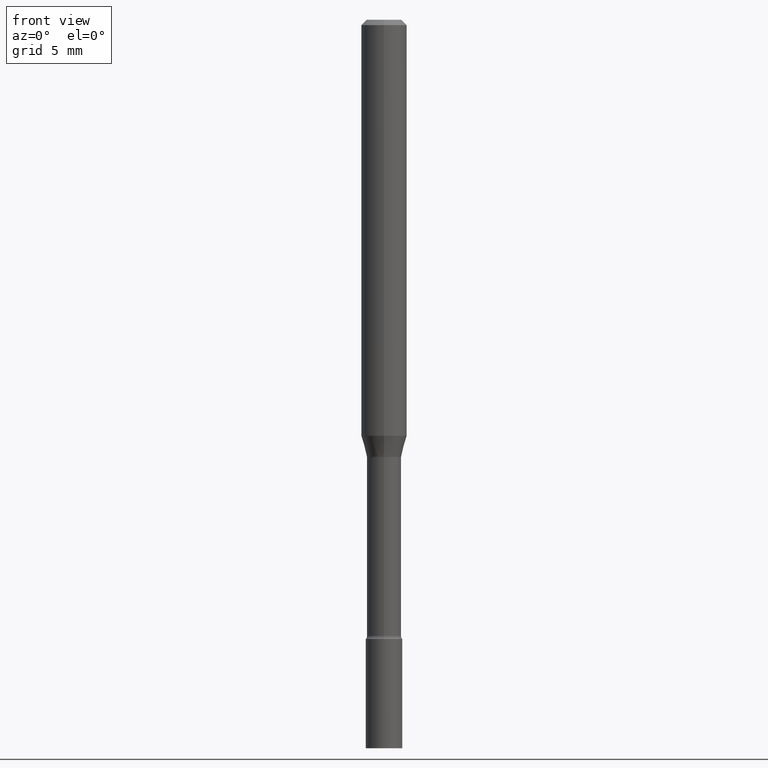
[diagram: clean part render]
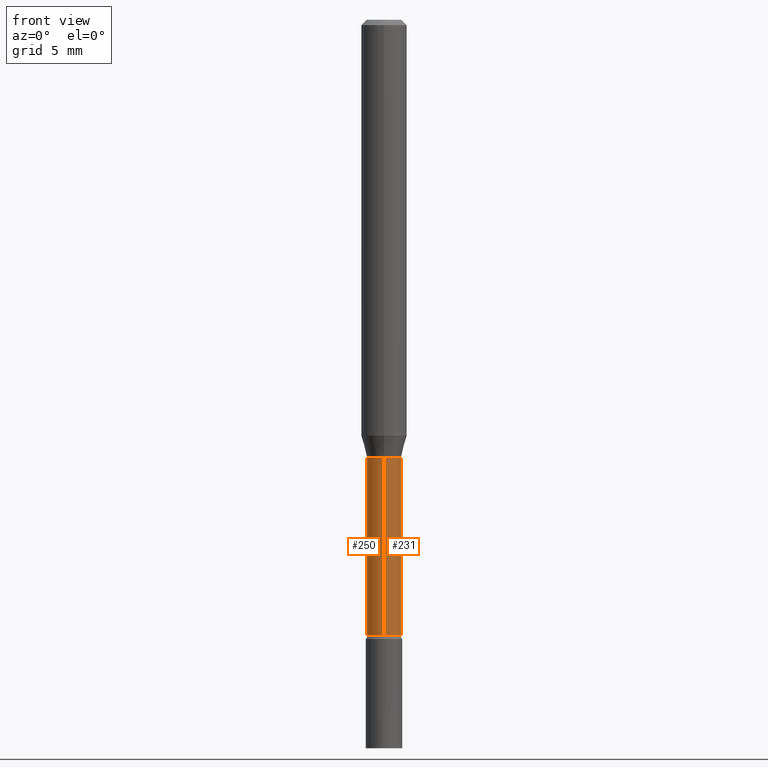
[diagram: same view with one multi-face feature highlighted, each face labeled with its STEP entity id]
A machine part, front view. The highlighted faces form ONE feature: a constant-radius fillet chain: 2 tangent blend faces with common blend radius 1.1938 mm. The faces share edges in the B-rep.
Their STEP definitions:
[1] entity #231 (Cylinder):
#10 = ORIENTED_EDGE ( 'NONE', *, *, #437, .T. ) ;
#63 = LINE ( 'NONE', #397, #97 ) ;
#75 = LINE ( 'NONE', #374, #379 ) ;
#87 = VERTEX_POINT ( 'NONE', #386 ) ;
#93 = CARTESIAN_POINT ( 'NONE',  ( 3.339550858072885526E-16, 0.04699999999999578820, -1.201974787463810923 ) ) ;
#97 = VECTOR ( 'NONE', #475, 39.37007874015748143 ) ;
#125 = VERTEX_POINT ( 'NONE', #309 ) ;
#128 = AXIS2_PLACEMENT_3D ( 'NONE', #373, #480, #484 ) ;
#159 = DIRECTION ( 'NONE',  ( -2.445393163361418932E-29, 3.491589663672031616E-15, 1.000000000000000000 ) ) ;
#190 = DIRECTION ( 'NONE',  ( -2.445393163361418932E-29, 3.491589663672031221E-15, 1.000000000000000000 ) ) ;
#203 = VERTEX_POINT ( 'NONE', #434 ) ;
#230 = ORIENTED_EDGE ( 'NONE', *, *, #505, .F. ) ;
#231 = ADVANCED_FACE ( 'NONE', ( #282 ), #325, .T. ) ;
#239 = CIRCLE ( 'NONE', #388, 0.04699999999999998623 ) ;
#274 = ORIENTED_EDGE ( 'NONE', *, *, #473, .F. ) ;
#282 = FACE_OUTER_BOUND ( 'NONE', #350, .T. ) ;
#290 = DIRECTION ( 'NONE',  ( -6.982962677686265922E-15, -1.000000000000000000, 2.906221269855600083E-15 ) ) ;
#309 = CARTESIAN_POINT ( 'NONE',  ( -3.281992458512250202E-16, -0.04700000000000418426, -1.201974787463810701 ) ) ;
#325 = CYLINDRICAL_SURFACE ( 'NONE', #128, 0.04700000000000003481 ) ;
#326 = CARTESIAN_POINT ( 'NONE',  ( 2.939300927796797493E-29, -4.196802743903029132E-15, -1.201974787463810701 ) ) ;
#346 = VERTEX_POINT ( 'NONE', #93 ) ;
#350 = EDGE_LOOP ( 'NONE', ( #486, #10, #274, #230 ) ) ;
#373 = CARTESIAN_POINT ( 'NONE',  ( 0.000000000000000000, 0.000000000000000000, 0.000000000000000000 ) ) ;
#374 = CARTESIAN_POINT ( 'NONE',  ( -3.281992458512547997E-16, -0.04700000000000003481, 1.641047141925856122E-16 ) ) ;
#378 = AXIS2_PLACEMENT_3D ( 'NONE', #406, #190, #447 ) ;
#379 = VECTOR ( 'NONE', #159, 39.37007874015748143 ) ;
#386 = CARTESIAN_POINT ( 'NONE',  ( -3.281992458512137296E-16, -0.04700000000000599532, -1.690999999999999837 ) ) ;
#388 = AXIS2_PLACEMENT_3D ( 'NONE', #326, #403, #290 ) ;
#397 = CARTESIAN_POINT ( 'NONE',  ( 3.339550858072472854E-16, 0.04700000000000003481, -1.641047141925856122E-16 ) ) ;
#402 = EDGE_CURVE ( 'NONE', #87, #203, #501, .T. ) ;
#403 = DIRECTION ( 'NONE',  ( -2.445393163361418932E-29, 3.491589663672031221E-15, 1.000000000000000000 ) ) ;
#406 = CARTESIAN_POINT ( 'NONE',  ( 4.135159839244159907E-29, -5.904278121269405101E-15, -1.691000000000000059 ) ) ;
#434 = CARTESIAN_POINT ( 'NONE',  ( 3.446132268436902621E-16, 0.04699999999999417838, -1.691000000000000281 ) ) ;
#437 = EDGE_CURVE ( 'NONE', #203, #346, #63, .T. ) ;
#447 = DIRECTION ( 'NONE',  ( -6.982962677686265133E-15, -1.000000000000000000, 5.812442539711187545E-15 ) ) ;
#473 = EDGE_CURVE ( 'NONE', #125, #346, #239, .T. ) ;
#475 = DIRECTION ( 'NONE',  ( -2.445393163361418932E-29, 3.491589663672031616E-15, 1.000000000000000000 ) ) ;
#480 = DIRECTION ( 'NONE',  ( -2.445393163361418932E-29, 3.491589663672031221E-15, 1.000000000000000000 ) ) ;
#484 = DIRECTION ( 'NONE',  ( -6.982962677686267499E-15, -1.000000000000000000, 3.491589663672031616E-15 ) ) ;
#486 = ORIENTED_EDGE ( 'NONE', *, *, #402, .T. ) ;
#501 = CIRCLE ( 'NONE', #378, 0.04700000000000009032 ) ;
#505 = EDGE_CURVE ( 'NONE', #87, #125, #75, .T. ) ;
[2] entity #250 (Cylinder):
#1 = ORIENTED_EDGE ( 'NONE', *, *, #505, .T. ) ;
#22 = DIRECTION ( 'NONE',  ( -2.445393163361418932E-29, 3.491589663672031221E-15, 1.000000000000000000 ) ) ;
#63 = LINE ( 'NONE', #397, #97 ) ;
#70 = CARTESIAN_POINT ( 'NONE',  ( 2.939300927796797493E-29, -4.196802743903029132E-15, -1.201974787463810701 ) ) ;
#75 = LINE ( 'NONE', #374, #379 ) ;
#87 = VERTEX_POINT ( 'NONE', #386 ) ;
#91 = CARTESIAN_POINT ( 'NONE',  ( 0.000000000000000000, 0.000000000000000000, 0.000000000000000000 ) ) ;
#93 = CARTESIAN_POINT ( 'NONE',  ( 3.339550858072885526E-16, 0.04699999999999578820, -1.201974787463810923 ) ) ;
#97 = VECTOR ( 'NONE', #475, 39.37007874015748143 ) ;
#125 = VERTEX_POINT ( 'NONE', #309 ) ;
#143 = DIRECTION ( 'NONE',  ( -2.445393163361418932E-29, 3.491589663672031221E-15, 1.000000000000000000 ) ) ;
#159 = DIRECTION ( 'NONE',  ( -2.445393163361418932E-29, 3.491589663672031616E-15, 1.000000000000000000 ) ) ;
#160 = CIRCLE ( 'NONE', #387, 0.04700000000000009032 ) ;
#168 = ORIENTED_EDGE ( 'NONE', *, *, #182, .F. ) ;
#171 = EDGE_LOOP ( 'NONE', ( #216, #363, #1, #168 ) ) ;
#180 = EDGE_CURVE ( 'NONE', #203, #87, #160, .T. ) ;
#182 = EDGE_CURVE ( 'NONE', #346, #125, #443, .T. ) ;
#203 = VERTEX_POINT ( 'NONE', #434 ) ;
#206 = AXIS2_PLACEMENT_3D ( 'NONE', #91, #22, #221 ) ;
#216 = ORIENTED_EDGE ( 'NONE', *, *, #437, .F. ) ;
#221 = DIRECTION ( 'NONE',  ( -6.982962677686267499E-15, -1.000000000000000000, 3.491589663672031616E-15 ) ) ;
#250 = ADVANCED_FACE ( 'NONE', ( #458 ), #493, .T. ) ;
#281 = AXIS2_PLACEMENT_3D ( 'NONE', #70, #376, #398 ) ;
#304 = DIRECTION ( 'NONE',  ( -6.982962677686265133E-15, -1.000000000000000000, 5.812442539711187545E-15 ) ) ;
#309 = CARTESIAN_POINT ( 'NONE',  ( -3.281992458512250202E-16, -0.04700000000000418426, -1.201974787463810701 ) ) ;
#346 = VERTEX_POINT ( 'NONE', #93 ) ;
#357 = CARTESIAN_POINT ( 'NONE',  ( 4.135159839244159907E-29, -5.904278121269405101E-15, -1.691000000000000059 ) ) ;
#363 = ORIENTED_EDGE ( 'NONE', *, *, #180, .T. ) ;
#374 = CARTESIAN_POINT ( 'NONE',  ( -3.281992458512547997E-16, -0.04700000000000003481, 1.641047141925856122E-16 ) ) ;
#376 = DIRECTION ( 'NONE',  ( -2.445393163361418932E-29, 3.491589663672031221E-15, 1.000000000000000000 ) ) ;
#379 = VECTOR ( 'NONE', #159, 39.37007874015748143 ) ;
#386 = CARTESIAN_POINT ( 'NONE',  ( -3.281992458512137296E-16, -0.04700000000000599532, -1.690999999999999837 ) ) ;
#387 = AXIS2_PLACEMENT_3D ( 'NONE', #357, #143, #304 ) ;
#397 = CARTESIAN_POINT ( 'NONE',  ( 3.339550858072472854E-16, 0.04700000000000003481, -1.641047141925856122E-16 ) ) ;
#398 = DIRECTION ( 'NONE',  ( -6.982962677686265922E-15, -1.000000000000000000, 2.906221269855600083E-15 ) ) ;
#434 = CARTESIAN_POINT ( 'NONE',  ( 3.446132268436902621E-16, 0.04699999999999417838, -1.691000000000000281 ) ) ;
#437 = EDGE_CURVE ( 'NONE', #203, #346, #63, .T. ) ;
#443 = CIRCLE ( 'NONE', #281, 0.04699999999999998623 ) ;
#458 = FACE_OUTER_BOUND ( 'NONE', #171, .T. ) ;
#475 = DIRECTION ( 'NONE',  ( -2.445393163361418932E-29, 3.491589663672031616E-15, 1.000000000000000000 ) ) ;
#493 = CYLINDRICAL_SURFACE ( 'NONE', #206, 0.04700000000000003481 ) ;
#505 = EDGE_CURVE ( 'NONE', #87, #125, #75, .T. ) ;